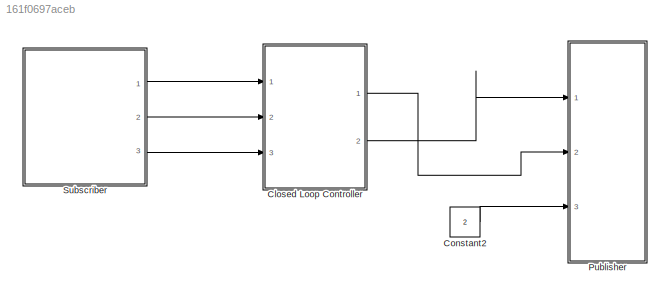
MODEL slx_161f0697aceb
KIND model
CONFIG AbsTol = auto
CONFIG EnableMultiTasking = off
CONFIG FixedStep = 0.01
CONFIG InitFcn = drifting_controller_stabilization_callback
CONFIG MaxStep = auto
CONFIG MinStep = auto
CONFIG RelTol = 1e-3
CONFIG SampleTimeConstraint = Unconstrained
CONFIG Solver = FixedStepAuto
CONFIG SolverName = FixedStepAuto
CONFIG StartTime = 0.0
CONFIG StopTime = inf
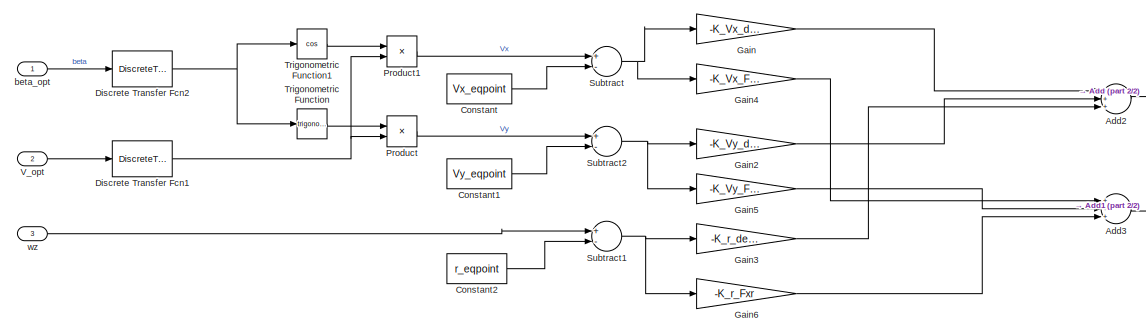
[diagram: Closed Loop Controller - part 1/2, left side, full height]
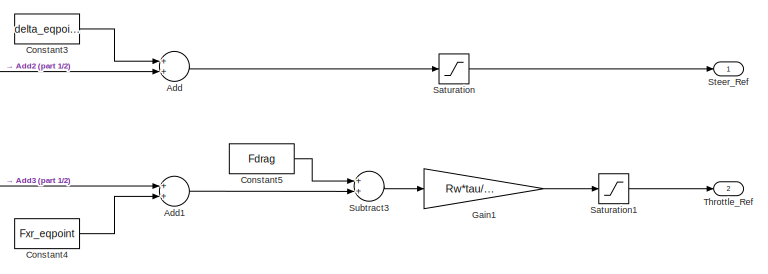
[diagram: Closed Loop Controller - part 2/2, right side, full height]
BLOCK [SubSystem] Closed Loop Controller
  Ports = [3, 2]
  RequestExecContextInheritance = off
  Variant = off
BLOCK [Sum] Closed Loop Controller/Add
  InputSameDT = off
  OutDataTypeStr = Inherit: Inherit via internal rule
  Ports = [2, 1]
  SaturateOnIntegerOverflow = off
BLOCK [Sum] Closed Loop Controller/Add1
  InputSameDT = off
  OutDataTypeStr = Inherit: Inherit via internal rule
  Ports = [2, 1]
  SaturateOnIntegerOverflow = off
BLOCK [Sum] Closed Loop Controller/Add2
  InputSameDT = off
  Inputs = +++
  OutDataTypeStr = Inherit: Inherit via internal rule
  Ports = [3, 1]
  SaturateOnIntegerOverflow = off
BLOCK [Sum] Closed Loop Controller/Add3
  InputSameDT = off
  Inputs = +++
  OutDataTypeStr = Inherit: Inherit via internal rule
  Ports = [3, 1]
  SaturateOnIntegerOverflow = off
BLOCK [Constant] Closed Loop Controller/Constant
  Value = Vx_eqpoint
BLOCK [Constant] Closed Loop Controller/Constant1
  Value = Vy_eqpoint
BLOCK [Constant] Closed Loop Controller/Constant2
  Value = r_eqpoint
BLOCK [Constant] Closed Loop Controller/Constant3
  Value = delta_eqpoint
BLOCK [Constant] Closed Loop Controller/Constant4
  Value = Fxr_eqpoint
BLOCK [Constant] Closed Loop Controller/Constant5
  Value = Fdrag
BLOCK [DiscreteTransferFcn] Closed Loop Controller/Discrete Transfer Fcn1
  Denominator = Den_Filter
  InputPortMap = u0
  Numerator = Num_Filter
  Ports = [1, 1]
BLOCK [DiscreteTransferFcn] Closed Loop Controller/Discrete Transfer Fcn2
  Denominator = Den_Filter
  InputPortMap = u0
  Numerator = Num_Filter
  Ports = [1, 1]
BLOCK [Gain] Closed Loop Controller/Gain
  Gain = -K_Vx_delta
  OutDataTypeStr = Inherit: Inherit via internal rule
  ParamDataTypeStr = Inherit: Inherit via internal rule
  SaturateOnIntegerOverflow = off
BLOCK [Gain] Closed Loop Controller/Gain1
  Gain = Rw*tau/Kt/Imax
  OutDataTypeStr = Inherit: Inherit via internal rule
  ParamDataTypeStr = Inherit: Inherit via internal rule
  SaturateOnIntegerOverflow = off
BLOCK [Gain] Closed Loop Controller/Gain2
  Gain = -K_Vy_delta
  OutDataTypeStr = Inherit: Inherit via internal rule
  ParamDataTypeStr = Inherit: Inherit via internal rule
  SaturateOnIntegerOverflow = off
BLOCK [Gain] Closed Loop Controller/Gain3
  Gain = -K_r_delta
  OutDataTypeStr = Inherit: Inherit via internal rule
  ParamDataTypeStr = Inherit: Inherit via internal rule
  SaturateOnIntegerOverflow = off
BLOCK [Gain] Closed Loop Controller/Gain4
  Gain = -K_Vx_Fxr
  OutDataTypeStr = Inherit: Inherit via internal rule
  ParamDataTypeStr = Inherit: Inherit via internal rule
  SaturateOnIntegerOverflow = off
BLOCK [Gain] Closed Loop Controller/Gain5
  Gain = -K_Vy_Fxr
  OutDataTypeStr = Inherit: Inherit via internal rule
  ParamDataTypeStr = Inherit: Inherit via internal rule
  SaturateOnIntegerOverflow = off
BLOCK [Gain] Closed Loop Controller/Gain6
  Gain = -K_r_Fxr
  OutDataTypeStr = Inherit: Inherit via internal rule
  ParamDataTypeStr = Inherit: Inherit via internal rule
  SaturateOnIntegerOverflow = off
BLOCK [Product] Closed Loop Controller/Product
  InputSameDT = off
  OutDataTypeStr = Inherit: Inherit via internal rule
  Ports = [2, 1]
  RndMeth = Floor
  SaturateOnIntegerOverflow = off
BLOCK [Product] Closed Loop Controller/Product1
  InputSameDT = off
  OutDataTypeStr = Inherit: Inherit via internal rule
  Ports = [2, 1]
  RndMeth = Floor
  SaturateOnIntegerOverflow = off
BLOCK [Saturate] Closed Loop Controller/Saturation
  InputPortMap = u0
  LowerLimit = delta_min
  Ports = [1, 1]
  UpperLimit = delta_max
BLOCK [Saturate] Closed Loop Controller/Saturation1
  InputPortMap = u0
  LowerLimit = -1
  Ports = [1, 1]
  UpperLimit = 1
BLOCK [Outport] Closed Loop Controller/Steer_Ref
  IconDisplay = Port number
BLOCK [Sum] Closed Loop Controller/Subtract
  InputSameDT = off
  Inputs = +-
  OutDataTypeStr = Inherit: Inherit via internal rule
  Ports = [2, 1]
  SaturateOnIntegerOverflow = off
BLOCK [Sum] Closed Loop Controller/Subtract1
  InputSameDT = off
  Inputs = +-
  OutDataTypeStr = Inherit: Inherit via internal rule
  Ports = [2, 1]
  SaturateOnIntegerOverflow = off
BLOCK [Sum] Closed Loop Controller/Subtract2
  InputSameDT = off
  Inputs = +-
  OutDataTypeStr = Inherit: Inherit via internal rule
  Ports = [2, 1]
  SaturateOnIntegerOverflow = off
BLOCK [Sum] Closed Loop Controller/Subtract3
  InputSameDT = off
  OutDataTypeStr = Inherit: Inherit via internal rule
  Ports = [2, 1]
  SaturateOnIntegerOverflow = off
BLOCK [Outport] Closed Loop Controller/Throttle_Ref
  IconDisplay = Port number
  Port = 2
BLOCK [Trigonometry] Closed Loop Controller/Trigonometric Function
  Ports = [1, 1]
BLOCK [Trigonometry] Closed Loop Controller/Trigonometric Function1
  Operator = cos
  Ports = [1, 1]
BLOCK [Inport] Closed Loop Controller/V_opt
  IconDisplay = Port number
  Port = 2
BLOCK [Inport] Closed Loop Controller/beta_opt
  IconDisplay = Port number
BLOCK [Inport] Closed Loop Controller/wz
  IconDisplay = Port number
  Port = 3
BLOCK [Constant] Constant2
  OutDataTypeStr = uint8
  Value = 2
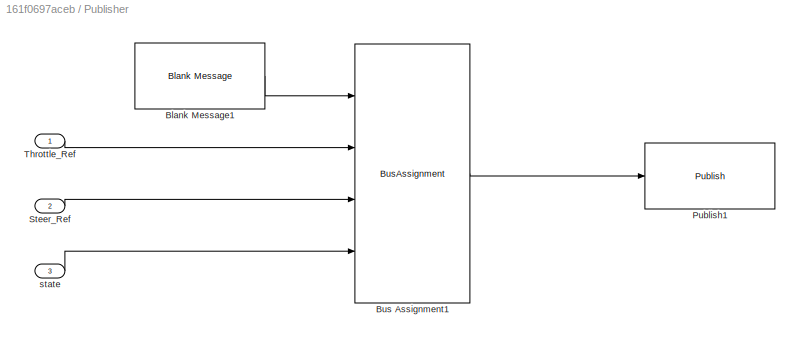
BLOCK [SubSystem] Publisher
  Ports = [3]
  RequestExecContextInheritance = off
  Variant = off
BLOCK [Reference] Publisher/Blank Message1  REF=robotlib/Blank Message
  Ports = [0, 1]
  SourceBlock = robotlib/Blank Message
  SourceLibraryInfo = This block requires Robotics System Toolbox
  SourceProductBaseCode = RO
  SourceProductName = Robotics System Toolbox
  SourceType = ROS Blank Message
BLOCK [BusAssignment] Publisher/Bus Assignment1
  AssignedSignals = SpeedRef,SteerRef,State
  Ports = [4, 1]
BLOCK [Reference] Publisher/Publish1  REF=robotlib/Publish
  Ports = [1]
  SourceBlock = robotlib/Publish
  SourceLibraryInfo = This block requires Robotics System Toolbox
  SourceProductBaseCode = RO
  SourceProductName = Robotics System Toolbox
  SourceType = ROS Publish
BLOCK [Inport] Publisher/Steer_Ref
  IconDisplay = Port number
  Port = 2
BLOCK [Inport] Publisher/Throttle_Ref
  IconDisplay = Port number
BLOCK [Inport] Publisher/state
  IconDisplay = Port number
  Port = 3
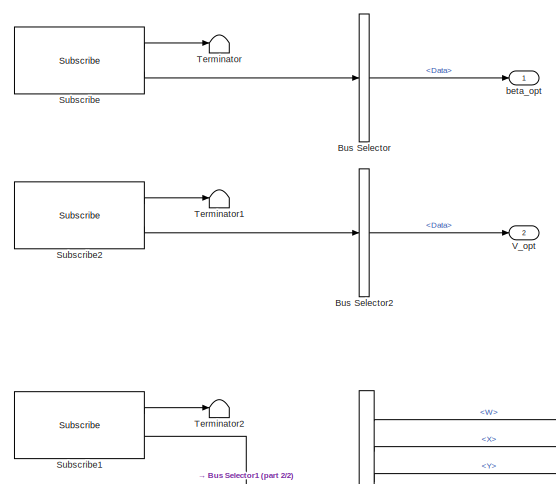
[diagram: Subscriber  - part 1/2, middle left region]
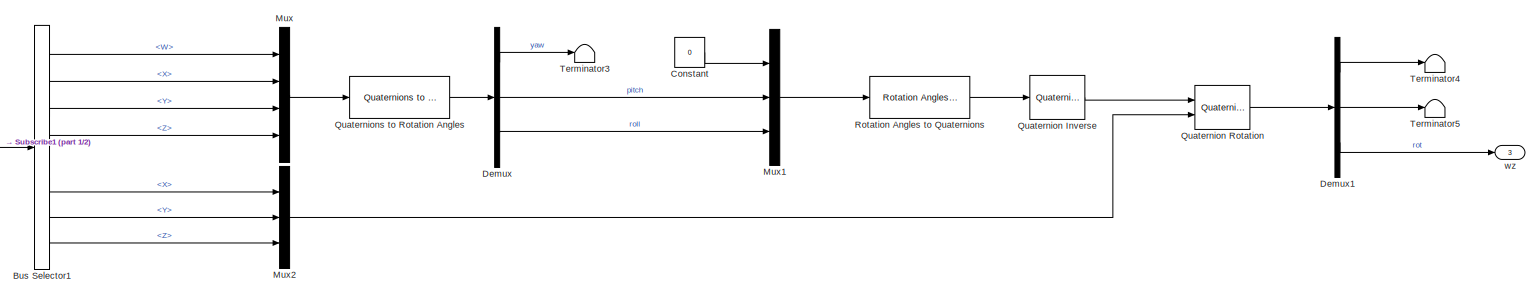
[diagram: Subscriber  - part 2/2, full width, bottom band]
BLOCK [SubSystem] Subscriber 
  Ports = [0, 3]
  RequestExecContextInheritance = off
  Variant = off
BLOCK [BusSelector] Subscriber /Bus Selector
  OutputAsBus = off
  OutputSignals = Data
  Ports = [1, 1]
BLOCK [BusSelector] Subscriber /Bus Selector1
  OutputAsBus = off
  OutputSignals = Orientation.W,Orientation.X,Orientation.Y,Orientation.Z,AngularVelocity.X,AngularVelocity.Y,AngularVelocity.Z
  Ports = [1, 7]
BLOCK [BusSelector] Subscriber /Bus Selector2
  OutputAsBus = off
  OutputSignals = Data
  Ports = [1, 1]
BLOCK [Constant] Subscriber /Constant
  Value = 0
BLOCK [Demux] Subscriber /Demux
  DisplayOption = bar
  Outputs = 3
  Ports = [1, 3]
BLOCK [Demux] Subscriber /Demux1
  DisplayOption = bar
  Outputs = 3
  Ports = [1, 3]
BLOCK [Mux] Subscriber /Mux
  DisplayOption = bar
  Ports = [4, 1]
BLOCK [Mux] Subscriber /Mux1
  DisplayOption = bar
  Inputs = 3
  Ports = [3, 1]
BLOCK [Mux] Subscriber /Mux2
  DisplayOption = bar
  Inputs = 3
  Ports = [3, 1]
BLOCK [Reference] Subscriber /Quaternion Inverse  REF=aerolibutil/Quaternion
Inverse
  Ports = [1, 1]
  SourceBlock = aerolibutil/Quaternion\nInverse
  SourceProductBaseCode = AE
  SourceProductName = Aerospace Blockset
  SourceType = Quaternion Inverse
BLOCK [Reference] Subscriber /Quaternion Rotation  REF=aerolibutil/Quaternion
Rotation
  Ports = [2, 1]
  SourceBlock = aerolibutil/Quaternion\nRotation
  SourceProductBaseCode = AE
  SourceProductName = Aerospace Blockset
  SourceType = Quaternion Rotation
BLOCK [Reference] Subscriber /Quaternions to Rotation Angles  REF=sharedtransform/Quaternions to Rotation Angles
  AttributesFormatString = Rotation Order: %<rotationOrder>
  Ports = [1, 1]
  SourceBlock = sharedtransform/Quaternions to Rotation Angles
  SourceType = Quat2Ang
BLOCK [Reference] Subscriber /Rotation Angles to Quaternions  REF=sharedtransform/Rotation Angles to Quaternions
  AttributesFormatString = Rotation Order: %<rotationOrder>
  Ports = [1, 1]
  SourceBlock = sharedtransform/Rotation Angles to Quaternions
  SourceType = Ang2Quat
BLOCK [Reference] Subscriber /Subscribe  REF=robotlib/Subscribe
  Ports = [0, 2]
  SourceBlock = robotlib/Subscribe
  SourceLibraryInfo = This block requires Robotics System Toolbox
  SourceProductBaseCode = RO
  SourceProductName = Robotics System Toolbox
  SourceType = ROS Subscribe
BLOCK [Reference] Subscriber /Subscribe1  REF=robotlib/Subscribe
  Ports = [0, 2]
  SourceBlock = robotlib/Subscribe
  SourceLibraryInfo = This block requires Robotics System Toolbox
  SourceProductBaseCode = RO
  SourceProductName = Robotics System Toolbox
  SourceType = ROS Subscribe
BLOCK [Reference] Subscriber /Subscribe2  REF=robotlib/Subscribe
  Ports = [0, 2]
  SourceBlock = robotlib/Subscribe
  SourceLibraryInfo = This block requires Robotics System Toolbox
  SourceProductBaseCode = RO
  SourceProductName = Robotics System Toolbox
  SourceType = ROS Subscribe
BLOCK [Terminator] Subscriber /Terminator
BLOCK [Terminator] Subscriber /Terminator1
BLOCK [Terminator] Subscriber /Terminator2
BLOCK [Terminator] Subscriber /Terminator3
BLOCK [Terminator] Subscriber /Terminator4
BLOCK [Terminator] Subscriber /Terminator5
BLOCK [Outport] Subscriber /V_opt
  IconDisplay = Port number
  Port = 2
BLOCK [Outport] Subscriber /beta_opt
  IconDisplay = Port number
BLOCK [Outport] Subscriber /wz
  IconDisplay = Port number
  Port = 3
LINE Closed Loop Controller/Add1:1 -> Closed Loop Controller/Subtract3:2
LINE Closed Loop Controller/Add2:1 -> Closed Loop Controller/Add:2
LINE Closed Loop Controller/Add3:1 -> Closed Loop Controller/Add1:1
LINE Closed Loop Controller/Add:1 -> Closed Loop Controller/Saturation:1
LINE Closed Loop Controller/Constant1:1 -> Closed Loop Controller/Subtract2:2
LINE Closed Loop Controller/Constant2:1 -> Closed Loop Controller/Subtract1:2
LINE Closed Loop Controller/Constant3:1 -> Closed Loop Controller/Add:1
LINE Closed Loop Controller/Constant4:1 -> Closed Loop Controller/Add1:2
LINE Closed Loop Controller/Constant5:1 -> Closed Loop Controller/Subtract3:1
LINE Closed Loop Controller/Constant:1 -> Closed Loop Controller/Subtract:2
NET Closed Loop Controller/Discrete Transfer Fcn1:1 -> Closed Loop Controller/Product1:2, Closed Loop Controller/Product:2
NET Closed Loop Controller/Discrete Transfer Fcn2:1 -> Closed Loop Controller/Trigonometric Function1:1, Closed Loop Controller/Trigonometric Function:1
LINE Closed Loop Controller/Gain1:1 -> Closed Loop Controller/Saturation1:1
LINE Closed Loop Controller/Gain2:1 -> Closed Loop Controller/Add2:2
LINE Closed Loop Controller/Gain3:1 -> Closed Loop Controller/Add2:3
LINE Closed Loop Controller/Gain4:1 -> Closed Loop Controller/Add3:1
LINE Closed Loop Controller/Gain5:1 -> Closed Loop Controller/Add3:2
LINE Closed Loop Controller/Gain6:1 -> Closed Loop Controller/Add3:3
LINE Closed Loop Controller/Gain:1 -> Closed Loop Controller/Add2:1
LINE Closed Loop Controller/Product1:1 -> Closed Loop Controller/Subtract:1
LINE Closed Loop Controller/Product:1 -> Closed Loop Controller/Subtract2:1
LINE Closed Loop Controller/Saturation1:1 -> Closed Loop Controller/Throttle_Ref:1
LINE Closed Loop Controller/Saturation:1 -> Closed Loop Controller/Steer_Ref:1
NET Closed Loop Controller/Subtract1:1 -> Closed Loop Controller/Gain3:1, Closed Loop Controller/Gain6:1
NET Closed Loop Controller/Subtract2:1 -> Closed Loop Controller/Gain2:1, Closed Loop Controller/Gain5:1
LINE Closed Loop Controller/Subtract3:1 -> Closed Loop Controller/Gain1:1
NET Closed Loop Controller/Subtract:1 -> Closed Loop Controller/Gain4:1, Closed Loop Controller/Gain:1
LINE Closed Loop Controller/Trigonometric Function1:1 -> Closed Loop Controller/Product1:1
LINE Closed Loop Controller/Trigonometric Function:1 -> Closed Loop Controller/Product:1
LINE Closed Loop Controller/V_opt:1 -> Closed Loop Controller/Discrete Transfer Fcn1:1
LINE Closed Loop Controller/beta_opt:1 -> Closed Loop Controller/Discrete Transfer Fcn2:1
LINE Closed Loop Controller/wz:1 -> Closed Loop Controller/Subtract1:1
LINE Closed Loop Controller:1 -> Publisher:2
LINE Closed Loop Controller:2 -> Publisher:1
LINE Constant2:1 -> Publisher:3
LINE Publisher/Blank Message1:1 -> Publisher/Bus Assignment1:1
LINE Publisher/Bus Assignment1:1 -> Publisher/Publish1:1
LINE Publisher/Steer_Ref:1 -> Publisher/Bus Assignment1:3
LINE Publisher/Throttle_Ref:1 -> Publisher/Bus Assignment1:2
LINE Publisher/state:1 -> Publisher/Bus Assignment1:4
LINE Subscriber /Bus Selector1:1 -> Subscriber /Mux:1
LINE Subscriber /Bus Selector1:2 -> Subscriber /Mux:2
LINE Subscriber /Bus Selector1:3 -> Subscriber /Mux:3
LINE Subscriber /Bus Selector1:4 -> Subscriber /Mux:4
LINE Subscriber /Bus Selector1:5 -> Subscriber /Mux2:1
LINE Subscriber /Bus Selector1:6 -> Subscriber /Mux2:2
LINE Subscriber /Bus Selector1:7 -> Subscriber /Mux2:3
LINE Subscriber /Bus Selector2:1 -> Subscriber /V_opt:1
LINE Subscriber /Bus Selector:1 -> Subscriber /beta_opt:1
LINE Subscriber /Constant:1 -> Subscriber /Mux1:1
LINE Subscriber /Demux1:1 -> Subscriber /Terminator4:1
LINE Subscriber /Demux1:2 -> Subscriber /Terminator5:1
LINE Subscriber /Demux1:3 -> Subscriber /wz:1
LINE Subscriber /Demux:1 -> Subscriber /Terminator3:1
LINE Subscriber /Demux:2 -> Subscriber /Mux1:2
LINE Subscriber /Demux:3 -> Subscriber /Mux1:3
LINE Subscriber /Mux1:1 -> Subscriber /Rotation Angles to Quaternions:1
LINE Subscriber /Mux2:1 -> Subscriber /Quaternion Rotation:2
LINE Subscriber /Mux:1 -> Subscriber /Quaternions to Rotation Angles:1
LINE Subscriber /Quaternion Inverse:1 -> Subscriber /Quaternion Rotation:1
LINE Subscriber /Quaternion Rotation:1 -> Subscriber /Demux1:1
LINE Subscriber /Quaternions to Rotation Angles:1 -> Subscriber /Demux:1
LINE Subscriber /Rotation Angles to Quaternions:1 -> Subscriber /Quaternion Inverse:1
LINE Subscriber /Subscribe1:1 -> Subscriber /Terminator2:1
LINE Subscriber /Subscribe1:2 -> Subscriber /Bus Selector1:1
LINE Subscriber /Subscribe2:1 -> Subscriber /Terminator1:1
LINE Subscriber /Subscribe2:2 -> Subscriber /Bus Selector2:1
LINE Subscriber /Subscribe:1 -> Subscriber /Terminator:1
LINE Subscriber /Subscribe:2 -> Subscriber /Bus Selector:1
LINE Subscriber :1 -> Closed Loop Controller:1
LINE Subscriber :2 -> Closed Loop Controller:2
LINE Subscriber :3 -> Closed Loop Controller:3
note: NET lines group one-source signal fan-out (src -> all destinations, sorted); 1:1 wires keep LINE
